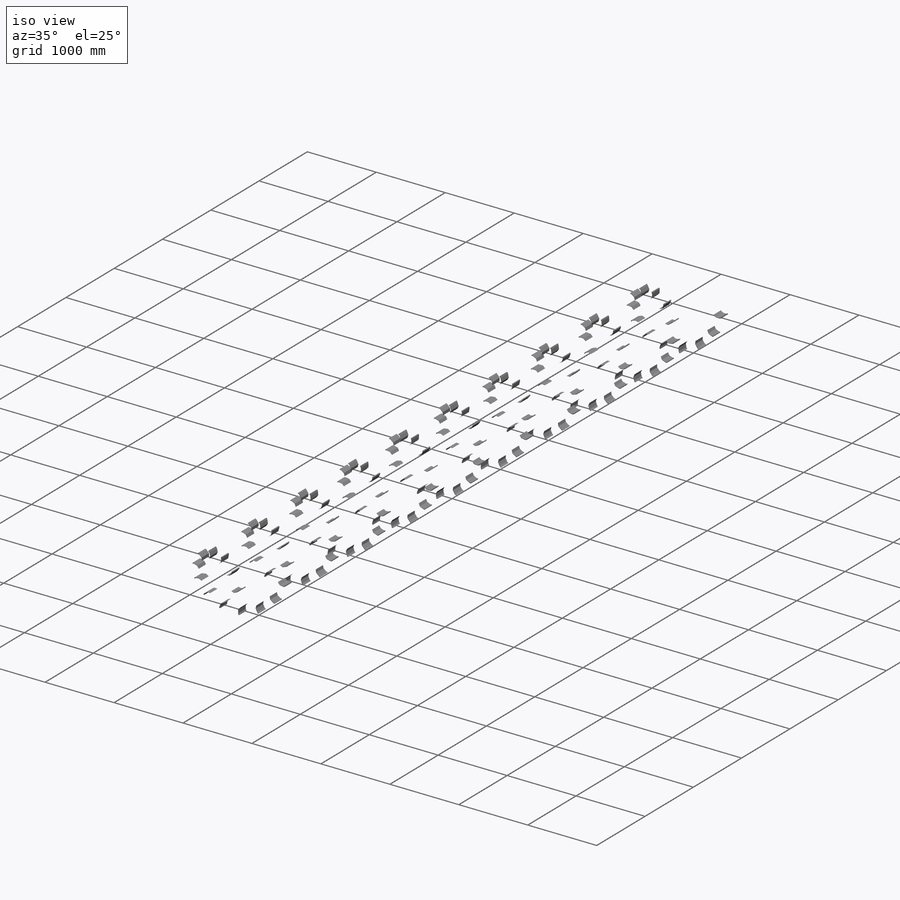
[diagram: iso view]
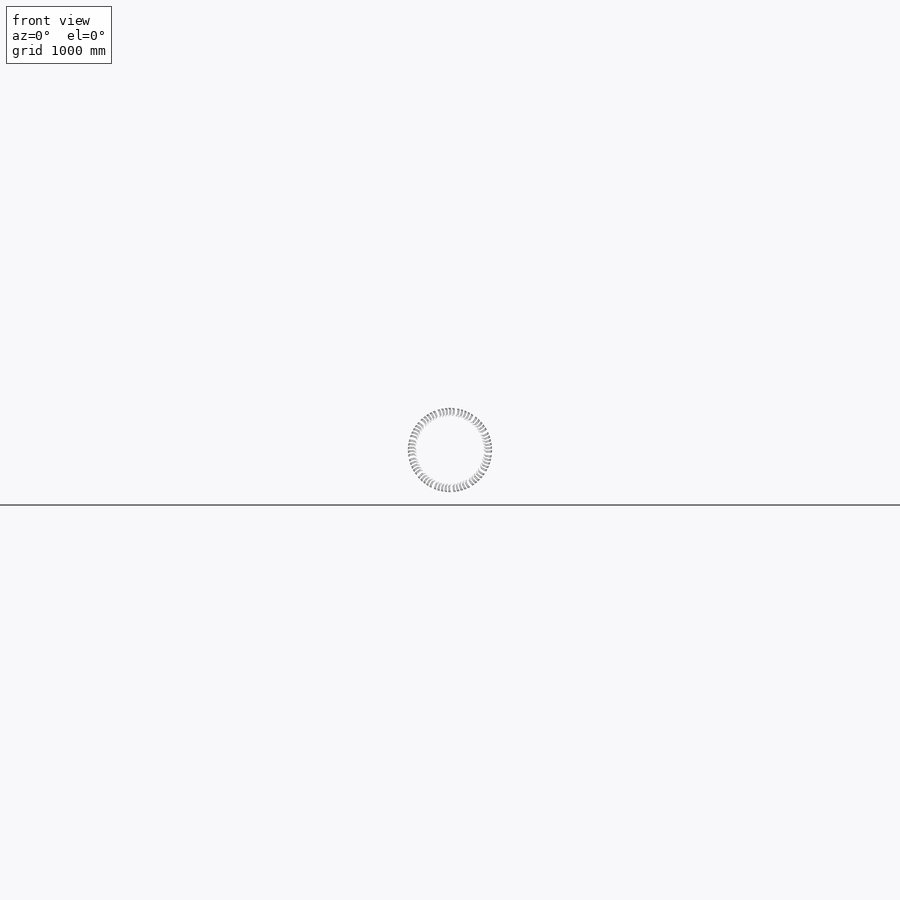
[diagram: front view]
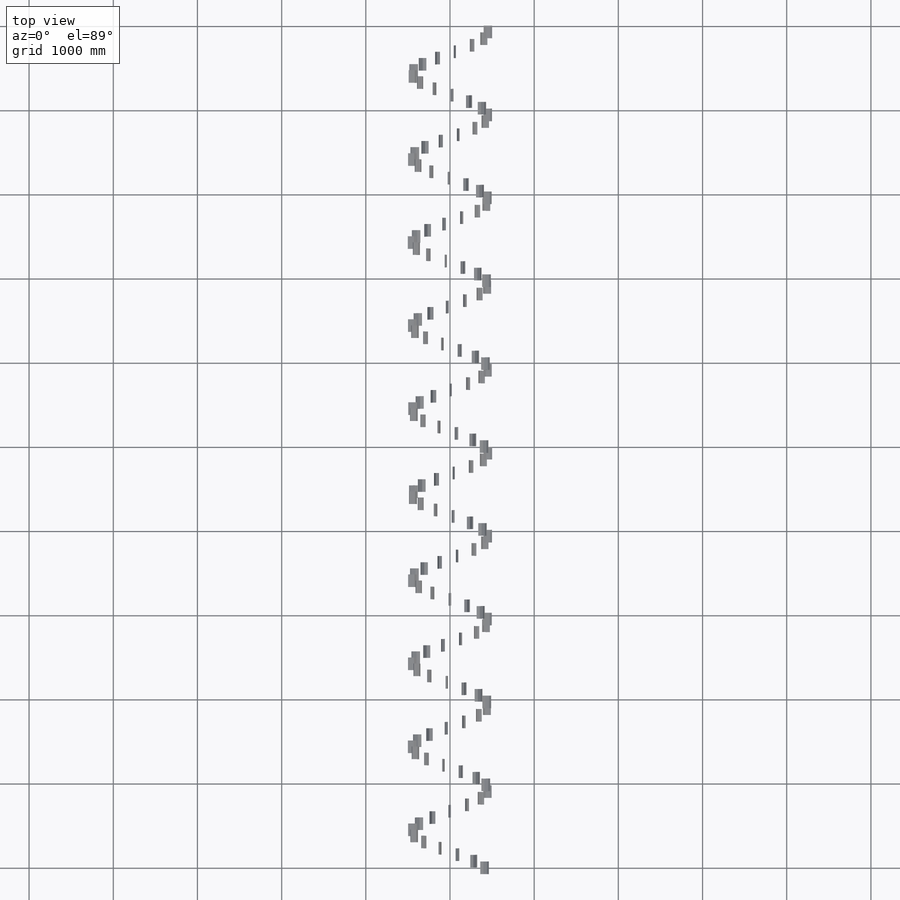
[diagram: top view]
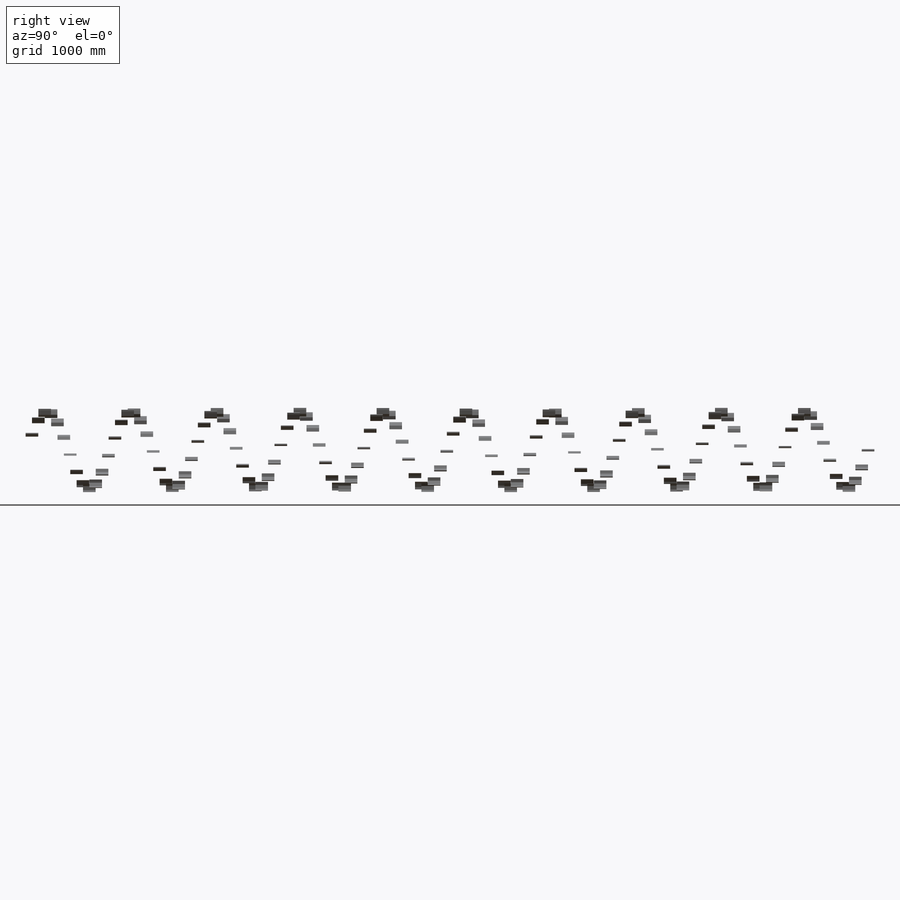
[diagram: right view]
SOLIDWORKS PART (.sldprt)
format: sldprt  version: not decoded by parser v0  size: 1,049,088 bytes
history: native  units: mm
features: sketch x2, extrude x2, material x1, helix x1 (+13 scaffold rows collapsed)
feature tree (19):
  scaffold x13  (default folders/planes/origin — collapsed)
  material  "Material <not specified>"
  sketch  "Sketch1"  dims[D1=1000.0mm]
  helix  "Helix/Spiral2"  Pitch=10000mm
  sketch  "Sketch6"  dims[D1=500.0mm]
  extrude  "Boss-Extrude2"  Depth=150mm
  extrude  "CrvPattern5"  Depth=150
decode coverage: 5 of 5 modeling features carry decoded parameters
note: suppression state not decoded; provenance and decode notes live in map.json
